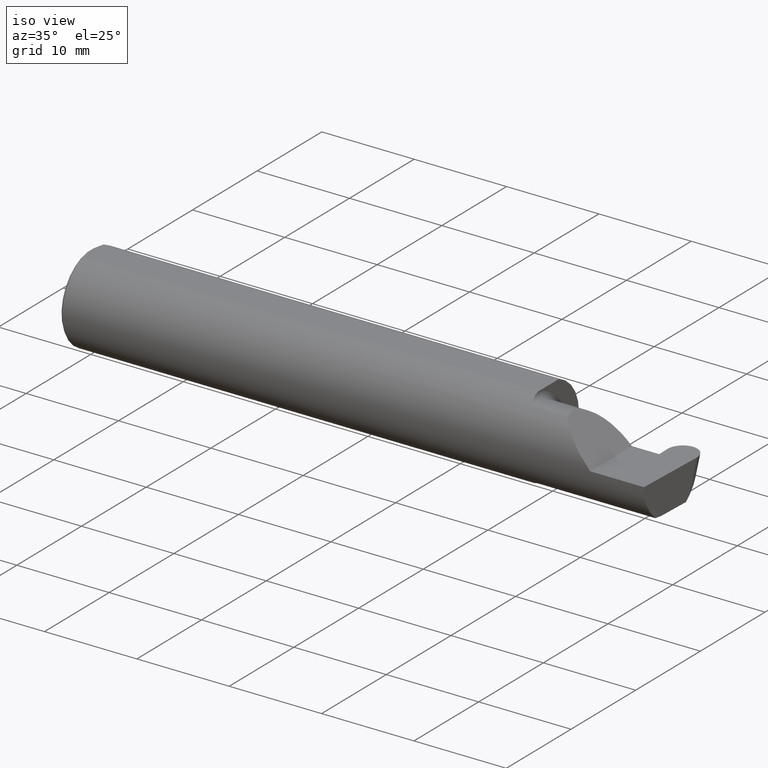
[diagram: clean part render]
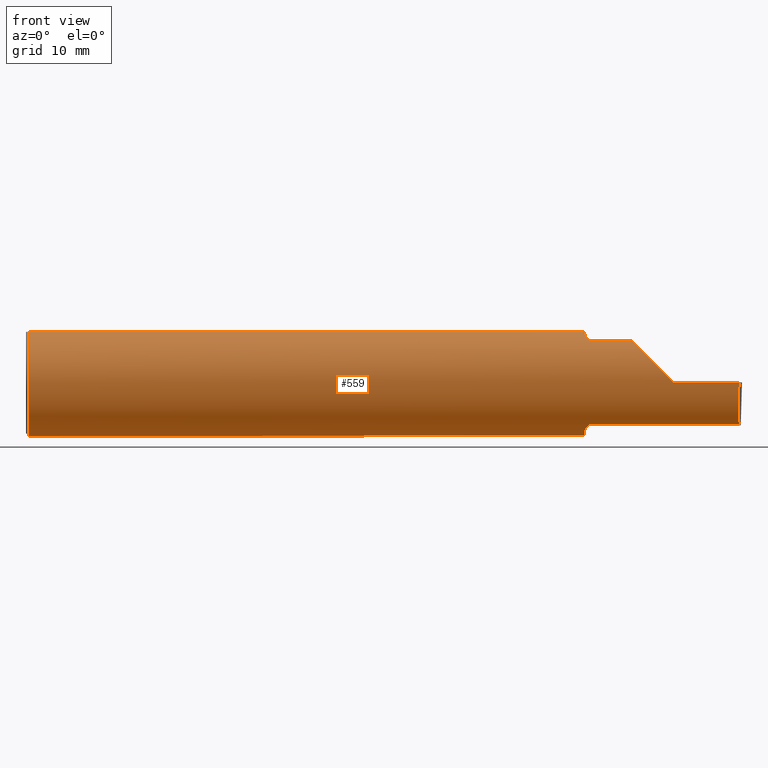
[diagram: tour spotlight — one face highlighted and labeled with its STEP entity id]
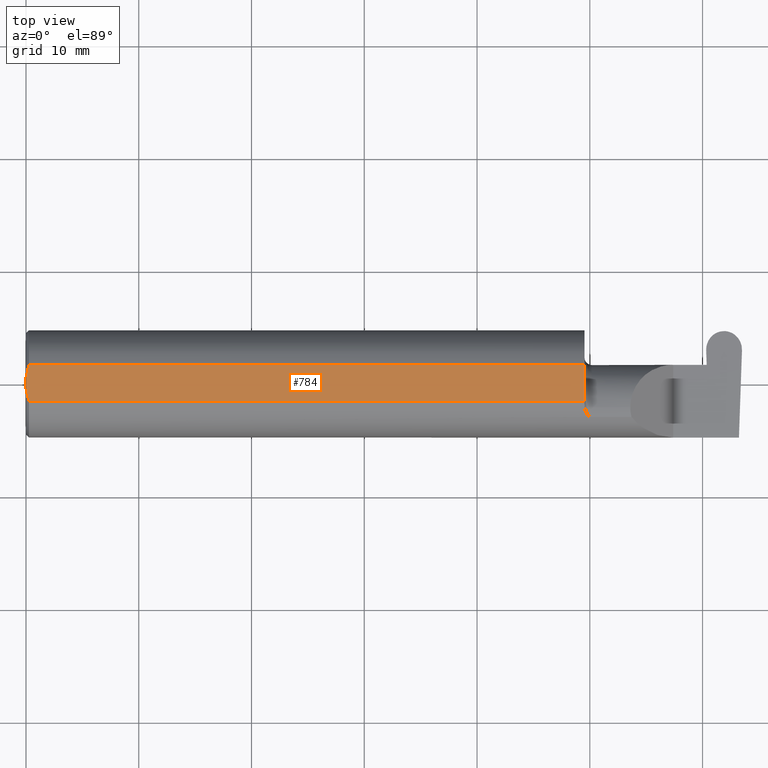
[diagram: tour spotlight — one face highlighted and labeled with its STEP entity id]
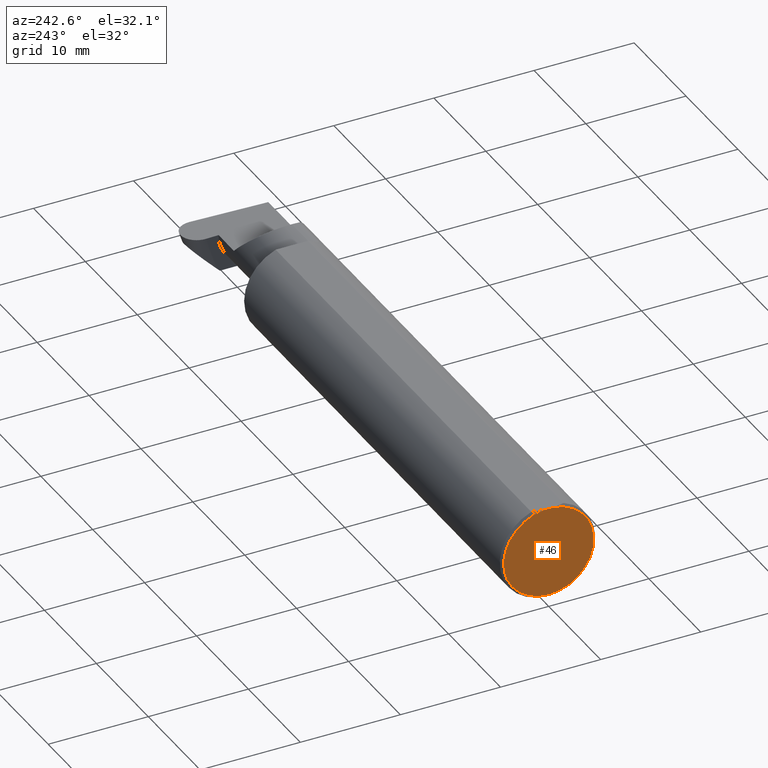
[diagram: tour spotlight — one face highlighted and labeled with its STEP entity id]
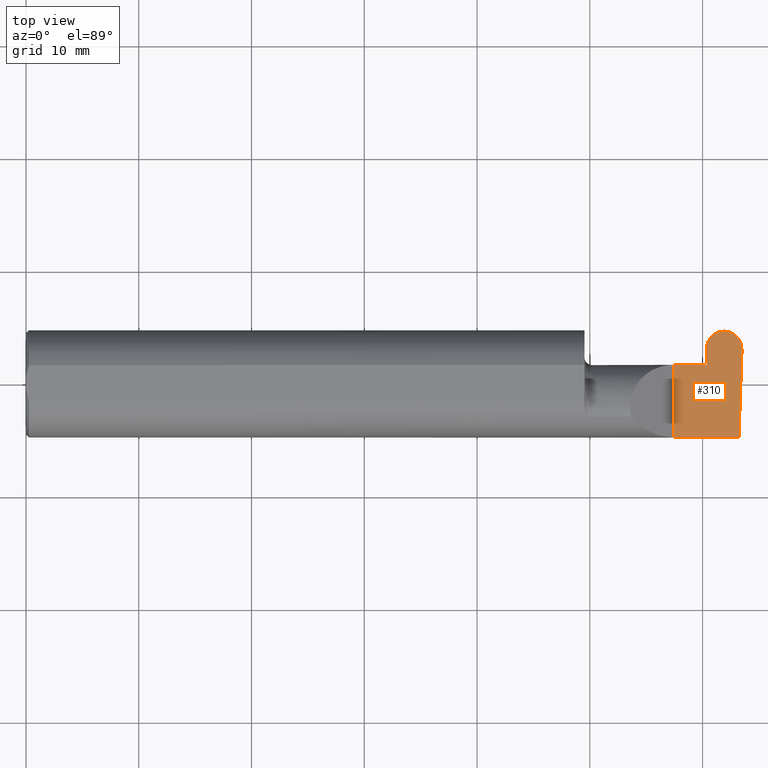
[diagram: tour spotlight — one face highlighted and labeled with its STEP entity id]
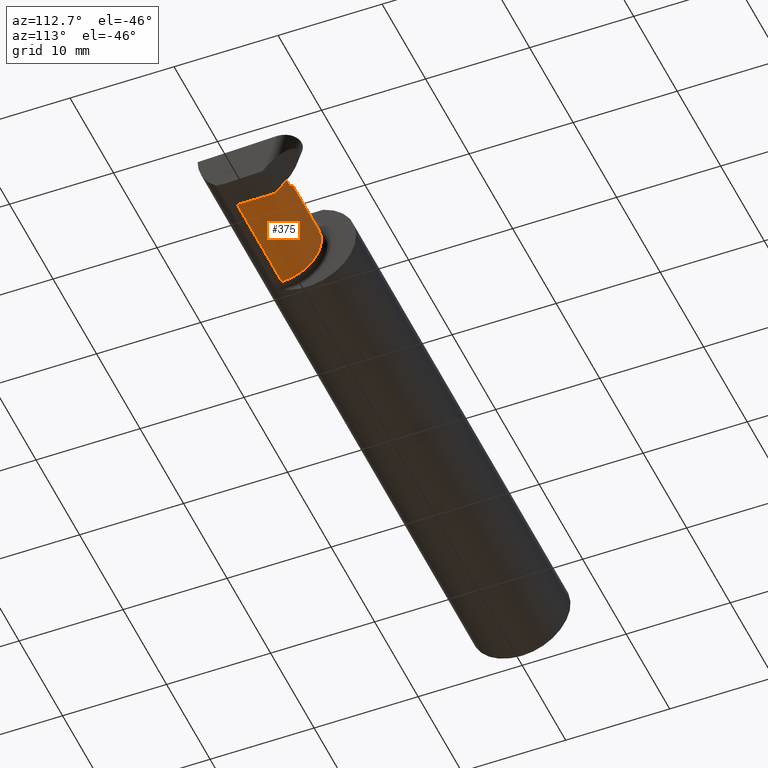
[diagram: tour spotlight — one face highlighted and labeled with its STEP entity id]
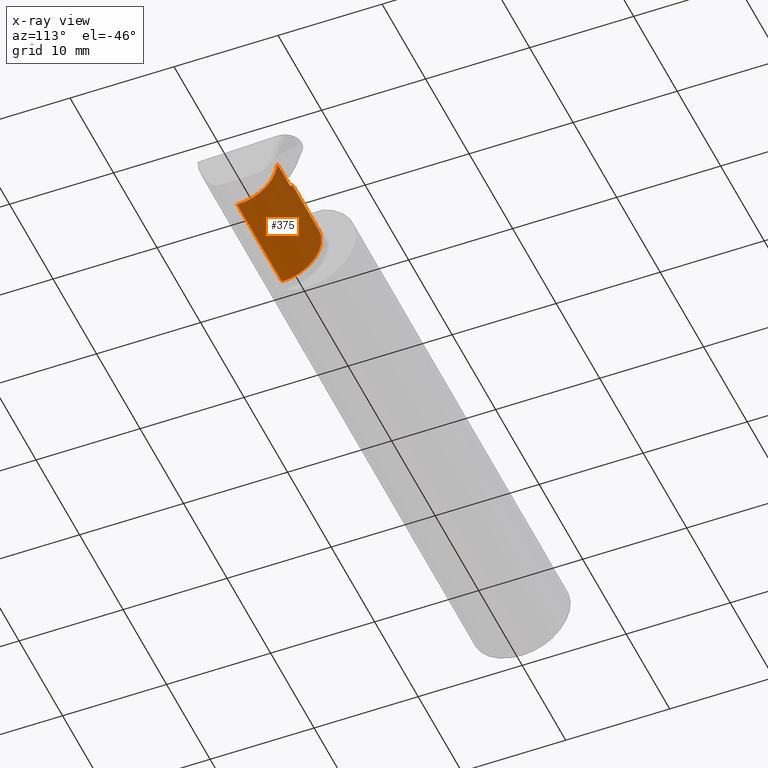
[diagram: x-ray of the same camera — body ghosted, this tour face saturated]
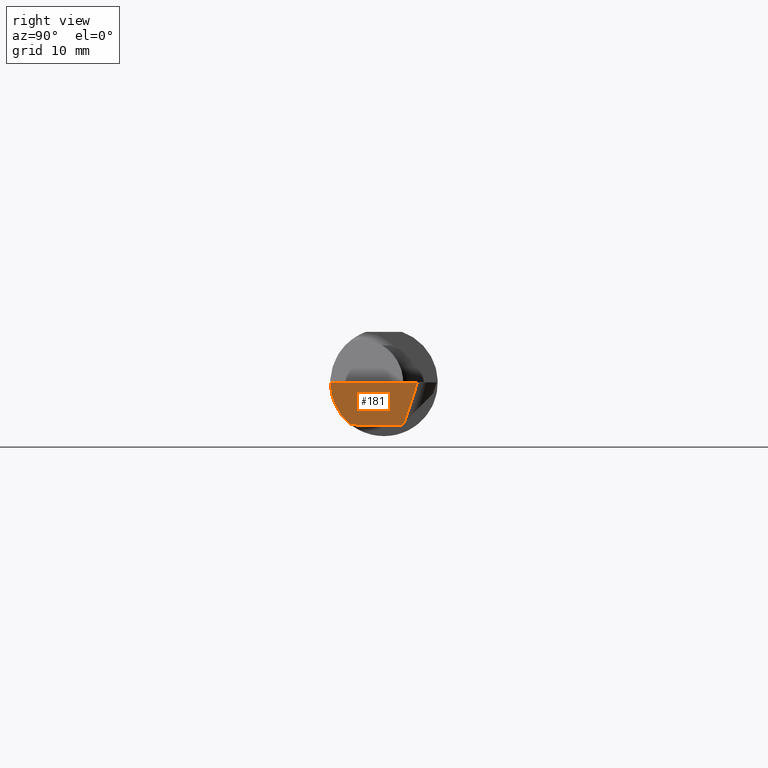
[diagram: tour spotlight — one face highlighted and labeled with its STEP entity id]
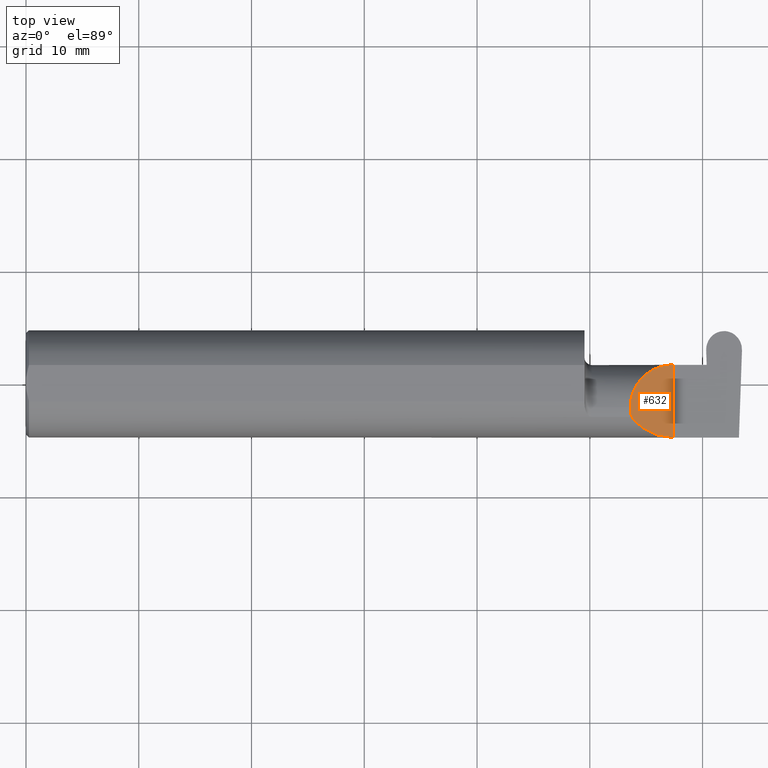
[diagram: tour spotlight — one face highlighted and labeled with its STEP entity id]
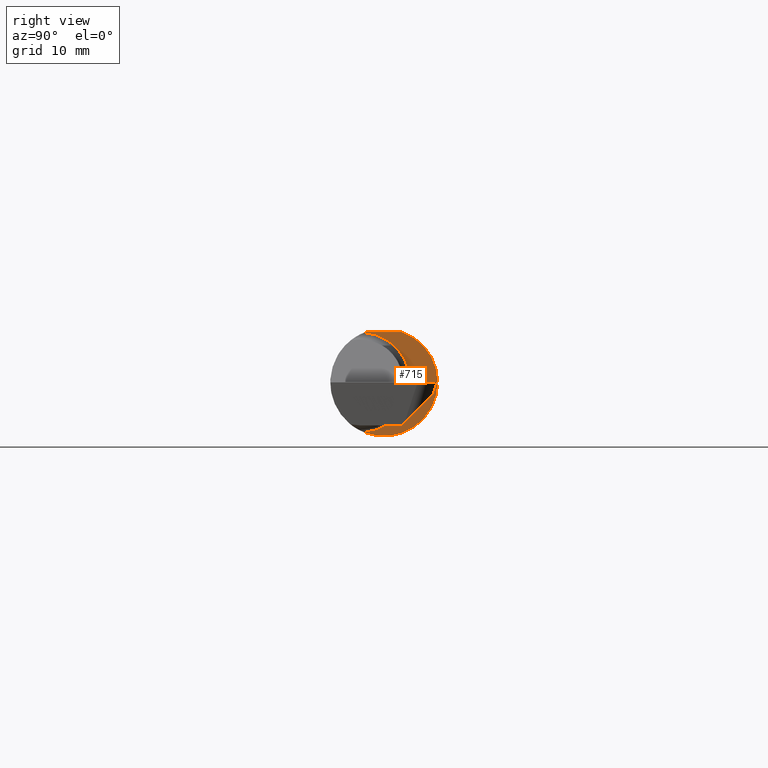
[diagram: tour spotlight — one face highlighted and labeled with its STEP entity id]
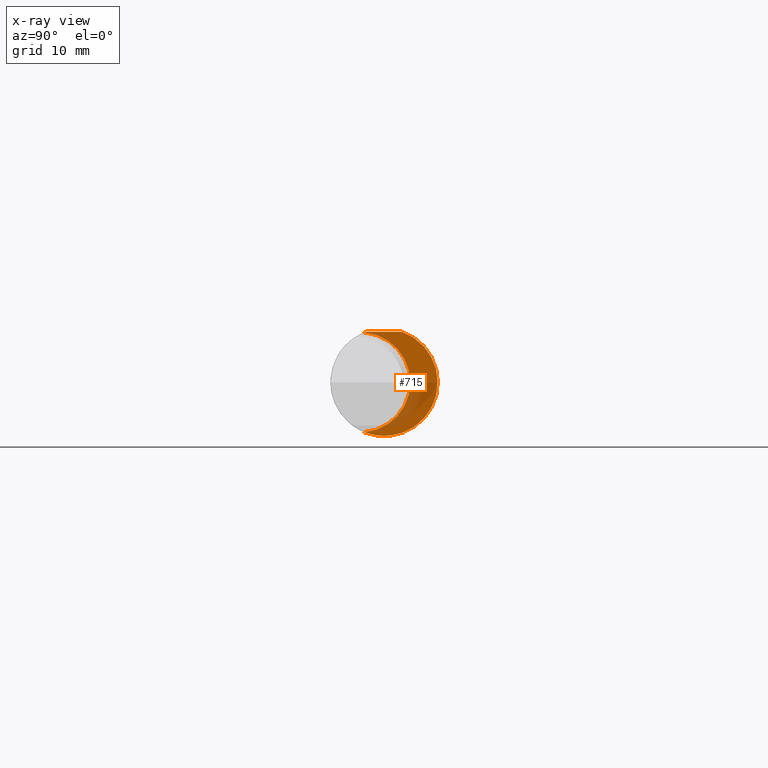
[diagram: x-ray of the same camera — body ghosted, this tour face saturated]
A machine part: a face-by-face anatomy tour. The part has 23 B-rep faces; the first image is the clean iso view, then the 8 largest visible faces are spotlighted one at a time (largest first), each with its STEP entity span.

Face 1 — front view, entity #559. In plain terms, the highlighted cylindrical surface (partial cylindrical patch) has radius 4.7587 mm, axis along (-1, -0, -0).
Definition (entity closure, byte-faithful):
#3 = CARTESIAN_POINT ( 'NONE',  ( 1.970804171164107554, -0.1167508198888948523, -0.1465276362740038363 ) ) ;
#6 = DIRECTION ( 'NONE',  ( 1.000000000000000000, 0.000000000000000000, 0.000000000000000000 ) ) ;
#22 = VERTEX_POINT ( 'NONE', #230 ) ;
#31 = EDGE_CURVE ( 'NONE', #643, #22, #475, .T. ) ;
#32 = CARTESIAN_POINT ( 'NONE',  ( 2.489235021721937002, -0.1873499999999999888, 0.000000000000000000 ) ) ;
#37 = CIRCLE ( 'NONE', #810, 0.1873499999999999888 ) ;
#40 = VECTOR ( 'NONE', #551, 39.37007874015748143 ) ;
#58 = CARTESIAN_POINT ( 'NONE',  ( 1.951062863587535334, -0.08334999999999995191, -0.1677879614275112619 ) ) ;
#63 = EDGE_LOOP ( 'NONE', ( #506, #483, #442, #372, #378, #143, #767, #593, #651, #247, #166, #400, #710, #663, #101 ) ) ;
#68 = CARTESIAN_POINT ( 'NONE',  ( 1.951062863587535334, -0.08334999999999995191, -0.1677879614275112619 ) ) ;
#72 = EDGE_CURVE ( 'NONE', #718, #86, #420, .T. ) ;
#86 = VERTEX_POINT ( 'NONE', #201 ) ;
#87 = CARTESIAN_POINT ( 'NONE',  ( 1.949999999999999956, 0.000000000000000000, 0.000000000000000000 ) ) ;
#97 = CARTESIAN_POINT ( 'NONE',  ( 1.952158970028689655, -0.09067355718685700394, 0.1641499263364886718 ) ) ;
#99 = DIRECTION ( 'NONE',  ( 1.000000000000000000, 0.000000000000000000, 0.000000000000000000 ) ) ;
#100 = CARTESIAN_POINT ( 'NONE',  ( 1.954075010165368553, -0.09778159395695863731, 0.1599914159748310749 ) ) ;
#101 = ORIENTED_EDGE ( 'NONE', *, *, #72, .F. ) ;
#106 = CIRCLE ( 'NONE', #658, 0.1873499999999999888 ) ;
#118 = CARTESIAN_POINT ( 'NONE',  ( 1.949999999999999956, -0.06851976604679065053, -0.1743704796142198643 ) ) ;
#123 = CARTESIAN_POINT ( 'NONE',  ( 1.974999999999999867, -0.1172600179964006228, 0.1461167706989303650 ) ) ;
#127 = CARTESIAN_POINT ( 'NONE',  ( 1.961340974786206282, -0.1102890168945985933, -0.1514792188789464422 ) ) ;
#131 = CARTESIAN_POINT ( 'NONE',  ( 2.150065971957464850, -0.1623470442677540371, 0.1099340280425340488 ) ) ;
#135 = CYLINDRICAL_SURFACE ( 'NONE', #262, 0.1873499999999999888 ) ;
#136 = CARTESIAN_POINT ( 'NONE',  ( 1.959228130464466089, -0.1072797540790366433, -0.1536407449207395914 ) ) ;
#139 = CARTESIAN_POINT ( 'NONE',  ( 1.949999999999999956, -0.06851976604679065053, 0.1743704796142198643 ) ) ;
#141 = DIRECTION ( 'NONE',  ( 0.000000000000000000, 0.000000000000000000, -1.000000000000000000 ) ) ;
#143 = ORIENTED_EDGE ( 'NONE', *, *, #449, .F. ) ;
#152 = DIRECTION ( 'NONE',  ( 0.000000000000000000, 0.000000000000000000, -1.000000000000000000 ) ) ;
#154 = CARTESIAN_POINT ( 'NONE',  ( 1.974999999999999867, -0.1172600179964006090, -0.1461167706989303927 ) ) ;
#166 = ORIENTED_EDGE ( 'NONE', *, *, #207, .T. ) ;
#177 = CIRCLE ( 'NONE', #481, 0.1873499999999999888 ) ;
#182 = CARTESIAN_POINT ( 'NONE',  ( 1.949999999999999956, -0.06325108694718283020, 0.1763499999999999235 ) ) ;
#187 = CARTESIAN_POINT ( 'NONE',  ( 1.952380638915945488, -0.09060738690120608008, -0.1640321561807271122 ) ) ;
#188 = VERTEX_POINT ( 'NONE', #139 ) ;
#190 = FACE_OUTER_BOUND ( 'NONE', #63, .T. ) ;
#195 = CARTESIAN_POINT ( 'NONE',  ( 0.000000000000000000, 0.000000000000000000, 0.000000000000000000 ) ) ;
#201 = CARTESIAN_POINT ( 'NONE',  ( 1.951062863587535334, -0.08334999999999995191, -0.1677879614275112619 ) ) ;
#207 = EDGE_CURVE ( 'NONE', #222, #702, #177, .T. ) ;
#210 = DIRECTION ( 'NONE',  ( 1.000000000000000000, 0.000000000000000000, 0.000000000000000000 ) ) ;
#222 = VERTEX_POINT ( 'NONE', #531 ) ;
#224 = CARTESIAN_POINT ( 'NONE',  ( 1.966924463282974322, -0.1152182125075826291, 0.1477647100440766248 ) ) ;
#230 = CARTESIAN_POINT ( 'NONE',  ( 2.113883229301068312, -0.1172600179964003175, 0.1461167706989304760 ) ) ;
#231 = B_SPLINE_CURVE_WITH_KNOTS ( 'NONE', 3,
 ( #736, #97, #100, #347, #600, #224, #628, #123 ),
 .UNSPECIFIED., .F., .F.,
 ( 4, 2, 2, 4 ),
 ( 0.0004561457252213479583, 0.001084815134961798072, 0.001399149839832026978, 0.001713484544702255884 ),
 .UNSPECIFIED. ) ;
#235 = CARTESIAN_POINT ( 'NONE',  ( 2.488188068920404561, -0.1623470442677541203, -0.1099340280425338823 ) ) ;
#244 = CARTESIAN_POINT ( 'NONE',  ( 2.174861995000000103, -0.1172600179964006090, 0.1461167706989303927 ) ) ;
#247 = ORIENTED_EDGE ( 'NONE', *, *, #401, .T. ) ;
#251 = DIRECTION ( 'NONE',  ( -1.000000000000000000, -0.000000000000000000, -0.000000000000000000 ) ) ;
#259 = DIRECTION ( 'NONE',  ( 1.000000000000000000, 0.000000000000000000, 0.000000000000000000 ) ) ;
#262 = AXIS2_PLACEMENT_3D ( 'NONE', #195, #560, #679 ) ;
#271 = VERTEX_POINT ( 'NONE', #642 ) ;
#275 =( BOUNDED_CURVE ( )  B_SPLINE_CURVE ( 3, ( #795, #235, #785, #492 ),
 .UNSPECIFIED., .F., .T. ) 
 B_SPLINE_CURVE_WITH_KNOTS ( ( 4, 4 ),
 ( 5.852427379562172405, 6.746954780470620250 ),
 .UNSPECIFIED. ) 
 CURVE ( )  GEOMETRIC_REPRESENTATION_ITEM ( )  RATIONAL_B_SPLINE_CURVE ( ( 1.000000000000000000, 0.9344226172588802060, 0.9344226172588802060, 1.000000000000000000 ) ) 
 REPRESENTATION_ITEM ( '' )  );
#276 = CARTESIAN_POINT ( 'NONE',  ( 1.949999999999999956, -0.06851976604679065053, 0.1743704796142198643 ) ) ;
#280 = B_SPLINE_CURVE_WITH_KNOTS ( 'NONE', 3,
 ( #58, #450, #691, #118 ),
 .UNSPECIFIED., .F., .F.,
 ( 4, 4 ),
 ( 0.001278539404338874426, 0.001694873732696222874 ),
 .UNSPECIFIED. ) ;
#294 = CARTESIAN_POINT ( 'NONE',  ( 0.000000000000000000, -0.06325108694718235836, 0.1763499999999999235 ) ) ;
#308 = CARTESIAN_POINT ( 'NONE',  ( 1.974999999999999867, -0.1172600179964006090, -0.1461167706989303927 ) ) ;
#313 = VECTOR ( 'NONE', #6, 39.37007874015748143 ) ;
#314 = VERTEX_POINT ( 'NONE', #616 ) ;
#331 = CARTESIAN_POINT ( 'NONE',  ( 1.949999999999999956, -0.06851976604679065053, -0.1743704796142198643 ) ) ;
#347 = CARTESIAN_POINT ( 'NONE',  ( 1.959249444250374061, -0.1073163636891284745, 0.1536158790136665508 ) ) ;
#355 = AXIS2_PLACEMENT_3D ( 'NONE', #792, #363, #673 ) ;
#358 = LINE ( 'NONE', #294, #464 ) ;
#363 = DIRECTION ( 'NONE',  ( 1.000000000000000000, 0.000000000000000000, 0.000000000000000000 ) ) ;
#369 = CARTESIAN_POINT ( 'NONE',  ( 2.113883229301068312, -0.1172600179964003175, 0.1461167706989304760 ) ) ;
#371 = CARTESIAN_POINT ( 'NONE',  ( 1.951612951569643428, -0.08702537370779860060, -0.1659621904011592264 ) ) ;
#372 = ORIENTED_EDGE ( 'NONE', *, *, #31, .T. ) ;
#377 = CARTESIAN_POINT ( 'NONE',  ( 1.955806801261506855, -0.1009700360460131230, -0.1578590382459147679 ) ) ;
#378 = ORIENTED_EDGE ( 'NONE', *, *, #515, .F. ) ;
#386 = EDGE_CURVE ( 'NONE', #759, #643, #419, .T. ) ;
#387 = CARTESIAN_POINT ( 'NONE',  ( 1.954475235432781677, -0.09757364237049399869, -0.1599863467203318512 ) ) ;
#400 = ORIENTED_EDGE ( 'NONE', *, *, #583, .F. ) ;
#401 = EDGE_CURVE ( 'NONE', #544, #222, #711, .T. ) ;
#411 = LINE ( 'NONE', #662, #40 ) ;
#417 = EDGE_CURVE ( 'NONE', #314, #759, #275, .T. ) ;
#419 = LINE ( 'NONE', #732, #425 ) ;
#420 = B_SPLINE_CURVE_WITH_KNOTS ( 'NONE', 3,
 ( #308, #758, #3, #563, #636, #127, #136, #377, #387, #187, #371, #68 ),
 .UNSPECIFIED., .F., .F.,
 ( 4, 2, 2, 2, 2, 4 ),
 ( 1.967976973726874814E-07, 0.0001599896235275606951, 0.0003197824493577486652, 0.0006393681010181240633, 0.0009589537526784994072, 0.001278539404338874426 ),
 .UNSPECIFIED. ) ;
#425 = VECTOR ( 'NONE', #669, 39.37007874015748143 ) ;
#438 = EDGE_CURVE ( 'NONE', #314, #718, #411, .T. ) ;
#440 = CARTESIAN_POINT ( 'NONE',  ( 0.000000000000000000, 0.06325108694718235836, 0.1763499999999999235 ) ) ;
#442 = ORIENTED_EDGE ( 'NONE', *, *, #386, .T. ) ;
#449 = EDGE_CURVE ( 'NONE', #271, #714, #231, .T. ) ;
#450 = CARTESIAN_POINT ( 'NONE',  ( 1.950346246588685162, -0.07856197451716402658, -0.1701664510438046507 ) ) ;
#455 = EDGE_CURVE ( 'NONE', #86, #731, #280, .T. ) ;
#458 = CARTESIAN_POINT ( 'NONE',  ( 1.974999999999999867, -0.1172600179964006228, 0.1461167706989303650 ) ) ;
#464 = VECTOR ( 'NONE', #99, 39.37007874015748143 ) ;
#475 =( BOUNDED_CURVE ( )  B_SPLINE_CURVE ( 3, ( #786, #503, #131, #369 ),
 .UNSPECIFIED., .F., .T. ) 
 B_SPLINE_CURVE_WITH_KNOTS ( ( 4, 4 ),
 ( 4.712388980384688786, 5.606916381293139295 ),
 .UNSPECIFIED. ) 
 CURVE ( )  GEOMETRIC_REPRESENTATION_ITEM ( )  RATIONAL_B_SPLINE_CURVE ( ( 1.000000000000000000, 0.9344226172588797619, 0.9344226172588797619, 1.000000000000000000 ) ) 
 REPRESENTATION_ITEM ( '' )  );
#481 = AXIS2_PLACEMENT_3D ( 'NONE', #527, #523, #152 ) ;
#483 = ORIENTED_EDGE ( 'NONE', *, *, #417, .T. ) ;
#492 = CARTESIAN_POINT ( 'NONE',  ( 2.489235021721937002, -0.1873499999999999888, 0.000000000000000000 ) ) ;
#500 = VERTEX_POINT ( 'NONE', #182 ) ;
#503 = CARTESIAN_POINT ( 'NONE',  ( 2.202189699843948301, -0.1873500000000000443, 0.05781030015605120170 ) ) ;
#506 = ORIENTED_EDGE ( 'NONE', *, *, #438, .F. ) ;
#515 = EDGE_CURVE ( 'NONE', #714, #22, #744, .T. ) ;
#521 = CARTESIAN_POINT ( 'NONE',  ( 1.949999999999999512, -0.07360907839729496915, 0.1723706084642000480 ) ) ;
#523 = DIRECTION ( 'NONE',  ( 1.000000000000000000, 0.000000000000000000, 0.000000000000000000 ) ) ;
#525 = CARTESIAN_POINT ( 'NONE',  ( 1.949999999999999956, 0.000000000000000000, 0.000000000000000000 ) ) ;
#527 = CARTESIAN_POINT ( 'NONE',  ( 0.009999999999999346217, 0.000000000000000000, 0.000000000000000000 ) ) ;
#529 = CARTESIAN_POINT ( 'NONE',  ( 2.260000000000000231, -0.1873499999999999888, 2.939152317953647352E-17 ) ) ;
#530 = B_SPLINE_CURVE_WITH_KNOTS ( 'NONE', 3,
 ( #276, #521, #534, #652 ),
 .UNSPECIFIED., .F., .F.,
 ( 4, 4 ),
 ( 4.423516731080748054E-05, 0.0004561457252213479583 ),
 .UNSPECIFIED. ) ;
#531 = CARTESIAN_POINT ( 'NONE',  ( 0.009999999999999346217, 0.000000000000000000, -0.1873499999999999888 ) ) ;
#532 = VECTOR ( 'NONE', #251, 39.37007874015748143 ) ;
#534 = CARTESIAN_POINT ( 'NONE',  ( 1.950344683557281300, -0.07855153123406184712, 0.1701716388274757408 ) ) ;
#544 = VERTEX_POINT ( 'NONE', #567 ) ;
#551 = DIRECTION ( 'NONE',  ( -1.000000000000000000, -0.000000000000000000, -0.000000000000000000 ) ) ;
#559 = ADVANCED_FACE ( 'NONE', ( #190 ), #135, .T. ) ;
#560 = DIRECTION ( 'NONE',  ( -1.000000000000000000, -0.000000000000000000, -0.000000000000000000 ) ) ;
#563 = CARTESIAN_POINT ( 'NONE',  ( 1.967163414264744281, -0.1151183835841405462, -0.1478135984872521735 ) ) ;
#567 = CARTESIAN_POINT ( 'NONE',  ( 0.009999999999999346217, -0.06325108694718235836, 0.1763499999999999235 ) ) ;
#583 = EDGE_CURVE ( 'NONE', #800, #702, #813, .T. ) ;
#593 = ORIENTED_EDGE ( 'NONE', *, *, #681, .F. ) ;
#599 = CARTESIAN_POINT ( 'NONE',  ( 1.949999999999999956, 0.06325108694718235836, 0.1763499999999999235 ) ) ;
#600 = CARTESIAN_POINT ( 'NONE',  ( 1.961319809340846376, -0.1102629523538395107, 0.1514982751257170079 ) ) ;
#616 = CARTESIAN_POINT ( 'NONE',  ( 2.489130585478359858, -0.1172600179964006090, -0.1461167706989303927 ) ) ;
#628 = CARTESIAN_POINT ( 'NONE',  ( 1.970724556588811627, -0.1172600179964060213, 0.1461167706989259796 ) ) ;
#636 = CARTESIAN_POINT ( 'NONE',  ( 1.965551048069661855, -0.1140002044565610190, -0.1486821290834930975 ) ) ;
#641 = CARTESIAN_POINT ( 'NONE',  ( 0.009999999999999346217, 0.06325108694718235836, 0.1763499999999999235 ) ) ;
#642 = CARTESIAN_POINT ( 'NONE',  ( 1.951062863587533558, -0.08334999999998819742, 0.1677879614275170628 ) ) ;
#643 = VERTEX_POINT ( 'NONE', #529 ) ;
#651 = ORIENTED_EDGE ( 'NONE', *, *, #789, .F. ) ;
#652 = CARTESIAN_POINT ( 'NONE',  ( 1.951062863587533558, -0.08334999999998819742, 0.1677879614275170628 ) ) ;
#658 = AXIS2_PLACEMENT_3D ( 'NONE', #87, #210, #761 ) ;
#662 = CARTESIAN_POINT ( 'NONE',  ( 2.174861995000000103, -0.1172600179964006090, -0.1461167706989303927 ) ) ;
#663 = ORIENTED_EDGE ( 'NONE', *, *, #455, .F. ) ;
#667 = EDGE_CURVE ( 'NONE', #188, #271, #530, .T. ) ;
#669 = DIRECTION ( 'NONE',  ( -1.000000000000000000, -0.000000000000000000, -0.000000000000000000 ) ) ;
#673 = DIRECTION ( 'NONE',  ( 0.000000000000000000, 0.000000000000000000, -1.000000000000000000 ) ) ;
#675 = EDGE_CURVE ( 'NONE', #731, #800, #37, .T. ) ;
#679 = DIRECTION ( 'NONE',  ( 0.000000000000000000, 0.000000000000000000, 1.000000000000000000 ) ) ;
#681 = EDGE_CURVE ( 'NONE', #500, #188, #106, .T. ) ;
#691 = CARTESIAN_POINT ( 'NONE',  ( 1.949999999999999956, -0.07359296612170564134, -0.1723769398647691242 ) ) ;
#702 = VERTEX_POINT ( 'NONE', #641 ) ;
#710 = ORIENTED_EDGE ( 'NONE', *, *, #675, .F. ) ;
#711 = CIRCLE ( 'NONE', #355, 0.1873499999999999888 ) ;
#714 = VERTEX_POINT ( 'NONE', #458 ) ;
#718 = VERTEX_POINT ( 'NONE', #154 ) ;
#731 = VERTEX_POINT ( 'NONE', #331 ) ;
#732 = CARTESIAN_POINT ( 'NONE',  ( 3.749399456654646757E-32, -0.1873499999999999610, 3.061616997868383634E-16 ) ) ;
#736 = CARTESIAN_POINT ( 'NONE',  ( 1.951062863587533558, -0.08334999999998819742, 0.1677879614275170628 ) ) ;
#744 = LINE ( 'NONE', #244, #313 ) ;
#758 = CARTESIAN_POINT ( 'NONE',  ( 1.972868998470238555, -0.1172600179964005396, -0.1461167706989304482 ) ) ;
#759 = VERTEX_POINT ( 'NONE', #32 ) ;
#761 = DIRECTION ( 'NONE',  ( 0.000000000000000000, 0.000000000000000000, -1.000000000000000000 ) ) ;
#767 = ORIENTED_EDGE ( 'NONE', *, *, #667, .F. ) ;
#785 = CARTESIAN_POINT ( 'NONE',  ( 2.488225324098681579, -0.1873500000000000443, -0.05781030015605120864 ) ) ;
#786 = CARTESIAN_POINT ( 'NONE',  ( 2.260000000000000231, -0.1873499999999999888, 2.939152317953647352E-17 ) ) ;
#789 = EDGE_CURVE ( 'NONE', #544, #500, #358, .T. ) ;
#792 = CARTESIAN_POINT ( 'NONE',  ( 0.009999999999999346217, 0.000000000000000000, 0.000000000000000000 ) ) ;
#795 = CARTESIAN_POINT ( 'NONE',  ( 2.489130585478359858, -0.1172600179964006090, -0.1461167706989303927 ) ) ;
#800 = VERTEX_POINT ( 'NONE', #599 ) ;
#810 = AXIS2_PLACEMENT_3D ( 'NONE', #525, #259, #141 ) ;
#813 = LINE ( 'NONE', #440, #532 ) ;

Face 2 — top view, entity #784. In plain terms, the highlighted planar face has unit normal (0, 0, 1).
Definition (entity closure, byte-faithful):
#7 = CARTESIAN_POINT ( 'NONE',  ( 0.005151108632379595466, -0.04888864921576189376, 0.1763499999999999235 ) ) ;
#21 = CARTESIAN_POINT ( 'NONE',  ( 0.005155213631852355663, 0.04890080824240217866, 0.1763499999999999235 ) ) ;
#41 = CARTESIAN_POINT ( 'NONE',  ( 2.876828993045917215, 0.1873499999999998500, 0.1763499999999999235 ) ) ;
#44 = FACE_OUTER_BOUND ( 'NONE', #693, .T. ) ;
#93 = EDGE_CURVE ( 'NONE', #544, #226, #520, .T. ) ;
#99 = DIRECTION ( 'NONE',  ( 1.000000000000000000, 0.000000000000000000, 0.000000000000000000 ) ) ;
#113 = VERTEX_POINT ( 'NONE', #260 ) ;
#124 = CARTESIAN_POINT ( 'NONE',  ( 0.001595548104417217512, -0.03385300050298979679, 0.1763499999999999235 ) ) ;
#125 = ORIENTED_EDGE ( 'NONE', *, *, #253, .F. ) ;
#146 = LINE ( 'NONE', #335, #501 ) ;
#149 = CARTESIAN_POINT ( 'NONE',  ( 0.000000000000000000, 0.1873499999999998500, 0.1763499999999999235 ) ) ;
#182 = CARTESIAN_POINT ( 'NONE',  ( 1.949999999999999956, -0.06325108694718283020, 0.1763499999999999235 ) ) ;
#204 = DIRECTION ( 'NONE',  ( 0.000000000000000000, 1.000000000000000000, 0.000000000000000000 ) ) ;
#226 = VERTEX_POINT ( 'NONE', #653 ) ;
#240 = ORIENTED_EDGE ( 'NONE', *, *, #690, .T. ) ;
#251 = DIRECTION ( 'NONE',  ( -1.000000000000000000, -0.000000000000000000, -0.000000000000000000 ) ) ;
#253 = EDGE_CURVE ( 'NONE', #113, #702, #804, .T. ) ;
#260 = CARTESIAN_POINT ( 'NONE',  ( 0.000000000000000000, 0.01880691362239451242, 0.1763499999999999235 ) ) ;
#273 = CARTESIAN_POINT ( 'NONE',  ( 0.009999999999999346217, 0.06325108694718235836, 0.1763499999999999235 ) ) ;
#294 = CARTESIAN_POINT ( 'NONE',  ( 0.000000000000000000, -0.06325108694718235836, 0.1763499999999999235 ) ) ;
#303 = EDGE_CURVE ( 'NONE', #226, #113, #708, .T. ) ;
#319 = ORIENTED_EDGE ( 'NONE', *, *, #789, .T. ) ;
#335 = CARTESIAN_POINT ( 'NONE',  ( 1.949999999999999956, 0.1873499999999998500, 0.1763499999999999235 ) ) ;
#358 = LINE ( 'NONE', #294, #464 ) ;
#399 = DIRECTION ( 'NONE',  ( -0.000000000000000000, 1.000000000000000000, -0.000000000000000000 ) ) ;
#440 = CARTESIAN_POINT ( 'NONE',  ( 0.000000000000000000, 0.06325108694718235836, 0.1763499999999999235 ) ) ;
#464 = VECTOR ( 'NONE', #99, 39.37007874015748143 ) ;
#500 = VERTEX_POINT ( 'NONE', #182 ) ;
#501 = VECTOR ( 'NONE', #204, 39.37007874015748143 ) ;
#520 = B_SPLINE_CURVE_WITH_KNOTS ( 'NONE', 3,
 ( #683, #7, #124, #808 ),
 .UNSPECIFIED., .F., .F.,
 ( 4, 4 ),
 ( 0.009771445421851449736, 0.01092787937989102981 ),
 .UNSPECIFIED. ) ;
#532 = VECTOR ( 'NONE', #251, 39.37007874015748143 ) ;
#544 = VERTEX_POINT ( 'NONE', #567 ) ;
#567 = CARTESIAN_POINT ( 'NONE',  ( 0.009999999999999346217, -0.06325108694718235836, 0.1763499999999999235 ) ) ;
#581 = ORIENTED_EDGE ( 'NONE', *, *, #583, .T. ) ;
#583 = EDGE_CURVE ( 'NONE', #800, #702, #813, .T. ) ;
#599 = CARTESIAN_POINT ( 'NONE',  ( 1.949999999999999956, 0.06325108694718235836, 0.1763499999999999235 ) ) ;
#641 = CARTESIAN_POINT ( 'NONE',  ( 0.009999999999999346217, 0.06325108694718235836, 0.1763499999999999235 ) ) ;
#653 = CARTESIAN_POINT ( 'NONE',  ( 0.000000000000000000, -0.01880691362239451242, 0.1763499999999999235 ) ) ;
#656 = CARTESIAN_POINT ( 'NONE',  ( 0.001616639753276218755, 0.03405189565400963680, 0.1763499999999999235 ) ) ;
#664 = DIRECTION ( 'NONE',  ( 0.000000000000000000, 0.000000000000000000, 1.000000000000000000 ) ) ;
#683 = CARTESIAN_POINT ( 'NONE',  ( 0.009999999999999346217, -0.06325108694718235836, 0.1763499999999999235 ) ) ;
#690 = EDGE_CURVE ( 'NONE', #500, #800, #146, .T. ) ;
#693 = EDGE_LOOP ( 'NONE', ( #319, #240, #581, #125, #796, #816 ) ) ;
#702 = VERTEX_POINT ( 'NONE', #641 ) ;
#707 = AXIS2_PLACEMENT_3D ( 'NONE', #41, #664, #794 ) ;
#708 = LINE ( 'NONE', #149, #762 ) ;
#729 = PLANE ( 'NONE',  #707 ) ;
#762 = VECTOR ( 'NONE', #399, 39.37007874015748143 ) ;
#773 = CARTESIAN_POINT ( 'NONE',  ( 0.000000000000000000, 0.01880691362239451242, 0.1763499999999999235 ) ) ;
#784 = ADVANCED_FACE ( 'NONE', ( #44 ), #729, .T. ) ;
#789 = EDGE_CURVE ( 'NONE', #544, #500, #358, .T. ) ;
#794 = DIRECTION ( 'NONE',  ( 1.000000000000000000, 0.000000000000000000, -0.000000000000000000 ) ) ;
#796 = ORIENTED_EDGE ( 'NONE', *, *, #303, .F. ) ;
#800 = VERTEX_POINT ( 'NONE', #599 ) ;
#804 = B_SPLINE_CURVE_WITH_KNOTS ( 'NONE', 3,
 ( #773, #656, #21, #273 ),
 .UNSPECIFIED., .F., .F.,
 ( 4, 4 ),
 ( 0.01188664626022267051, 0.01304646959483758001 ),
 .UNSPECIFIED. ) ;
#808 = CARTESIAN_POINT ( 'NONE',  ( 0.000000000000000000, -0.01880691362239451242, 0.1763499999999999235 ) ) ;
#813 = LINE ( 'NONE', #440, #532 ) ;
#816 = ORIENTED_EDGE ( 'NONE', *, *, #93, .F. ) ;

Face 3 — auxiliary view, entity #46. In plain terms, the highlighted planar face has unit normal (1, 0, 0).
Definition (entity closure, byte-faithful):
#46 = ADVANCED_FACE ( 'NONE', ( #485 ), #70, .F. ) ;
#48 = EDGE_CURVE ( 'NONE', #153, #226, #647, .T. ) ;
#59 = CARTESIAN_POINT ( 'NONE',  ( 0.000000000000000000, 0.000000000000000000, 0.000000000000000000 ) ) ;
#70 = PLANE ( 'NONE',  #660 ) ;
#110 = EDGE_CURVE ( 'NONE', #113, #153, #410, .T. ) ;
#113 = VERTEX_POINT ( 'NONE', #260 ) ;
#149 = CARTESIAN_POINT ( 'NONE',  ( 0.000000000000000000, 0.1873499999999998500, 0.1763499999999999235 ) ) ;
#153 = VERTEX_POINT ( 'NONE', #305 ) ;
#160 = AXIS2_PLACEMENT_3D ( 'NONE', #686, #242, #513 ) ;
#226 = VERTEX_POINT ( 'NONE', #653 ) ;
#242 = DIRECTION ( 'NONE',  ( -1.000000000000000000, -0.000000000000000000, -0.000000000000000000 ) ) ;
#245 = DIRECTION ( 'NONE',  ( 0.000000000000000000, 0.000000000000000000, -1.000000000000000000 ) ) ;
#257 = DIRECTION ( 'NONE',  ( 1.000000000000000000, 0.000000000000000000, 0.000000000000000000 ) ) ;
#260 = CARTESIAN_POINT ( 'NONE',  ( 0.000000000000000000, 0.01880691362239451242, 0.1763499999999999235 ) ) ;
#289 = AXIS2_PLACEMENT_3D ( 'NONE', #763, #451, #245 ) ;
#297 = ORIENTED_EDGE ( 'NONE', *, *, #303, .T. ) ;
#303 = EDGE_CURVE ( 'NONE', #226, #113, #708, .T. ) ;
#305 = CARTESIAN_POINT ( 'NONE',  ( 0.000000000000000000, 0.000000000000000000, -0.1773500000000005072 ) ) ;
#399 = DIRECTION ( 'NONE',  ( -0.000000000000000000, 1.000000000000000000, -0.000000000000000000 ) ) ;
#410 = CIRCLE ( 'NONE', #289, 0.1773500000000005072 ) ;
#451 = DIRECTION ( 'NONE',  ( -1.000000000000000000, -0.000000000000000000, -0.000000000000000000 ) ) ;
#453 = ORIENTED_EDGE ( 'NONE', *, *, #48, .T. ) ;
#485 = FACE_OUTER_BOUND ( 'NONE', #617, .T. ) ;
#513 = DIRECTION ( 'NONE',  ( 0.000000000000000000, 0.000000000000000000, -1.000000000000000000 ) ) ;
#573 = DIRECTION ( 'NONE',  ( 0.000000000000000000, 0.000000000000000000, -1.000000000000000000 ) ) ;
#617 = EDGE_LOOP ( 'NONE', ( #297, #670, #453 ) ) ;
#647 = CIRCLE ( 'NONE', #160, 0.1773500000000005072 ) ;
#653 = CARTESIAN_POINT ( 'NONE',  ( 0.000000000000000000, -0.01880691362239451242, 0.1763499999999999235 ) ) ;
#660 = AXIS2_PLACEMENT_3D ( 'NONE', #59, #257, #573 ) ;
#670 = ORIENTED_EDGE ( 'NONE', *, *, #110, .T. ) ;
#686 = CARTESIAN_POINT ( 'NONE',  ( 0.000000000000000000, 0.000000000000000000, 0.000000000000000000 ) ) ;
#708 = LINE ( 'NONE', #149, #762 ) ;
#762 = VECTOR ( 'NONE', #399, 39.37007874015748143 ) ;
#763 = CARTESIAN_POINT ( 'NONE',  ( 0.000000000000000000, 0.000000000000000000, 0.000000000000000000 ) ) ;

Face 4 — top view, entity #310. In plain terms, the highlighted planar face has unit normal (-0, 0, -1).
Definition (entity closure, byte-faithful):
#4 = VERTEX_POINT ( 'NONE', #790 ) ;
#12 = AXIS2_PLACEMENT_3D ( 'NONE', #285, #164, #239 ) ;
#13 = LINE ( 'NONE', #337, #724 ) ;
#18 = VERTEX_POINT ( 'NONE', #184 ) ;
#19 = CARTESIAN_POINT ( 'NONE',  ( 2.475377307836966079, 0.1846499999999998975, -4.652953611126238856E-18 ) ) ;
#32 = CARTESIAN_POINT ( 'NONE',  ( 2.489235021721937002, -0.1873499999999999888, 0.000000000000000000 ) ) ;
#36 = PLANE ( 'NONE',  #12 ) ;
#54 = DIRECTION ( 'NONE',  ( -0.03489949670249442581, -0.9993908270190959842, 0.000000000000000000 ) ) ;
#78 = CARTESIAN_POINT ( 'NONE',  ( 2.367498442027135663, 0.06665000000000002867, 0.000000000000000000 ) ) ;
#81 = ORIENTED_EDGE ( 'NONE', *, *, #386, .F. ) ;
#85 = FACE_OUTER_BOUND ( 'NONE', #493, .T. ) ;
#90 = LINE ( 'NONE', #454, #518 ) ;
#120 = EDGE_CURVE ( 'NONE', #4, #759, #441, .T. ) ;
#158 = CARTESIAN_POINT ( 'NONE',  ( 2.260000000000000231, -0.2500000000000000555, 2.939152317953647352E-17 ) ) ;
#159 = EDGE_CURVE ( 'NONE', #161, #687, #561, .T. ) ;
#161 = VERTEX_POINT ( 'NONE', #509 ) ;
#164 = DIRECTION ( 'NONE',  ( -1.224646799147353947E-16, 0.000000000000000000, -1.000000000000000000 ) ) ;
#184 = CARTESIAN_POINT ( 'NONE',  ( 2.374857090704703300, 0.1171071390637349746, 0.000000000000000000 ) ) ;
#186 = CARTESIAN_POINT ( 'NONE',  ( 2.373483501636015180, 0.1564415835413277556, 1.582374065488283881E-17 ) ) ;
#198 = EDGE_CURVE ( 'NONE', #626, #570, #13, .T. ) ;
#200 = CARTESIAN_POINT ( 'NONE',  ( 2.399346682163034483, 0.1846500000000001473, 1.265641453006449190E-17 ) ) ;
#205 = ORIENTED_EDGE ( 'NONE', *, *, #634, .F. ) ;
#217 = CARTESIAN_POINT ( 'NONE',  ( 2.437939523532632435, 0.1846500000000000363, 0.000000000000000000 ) ) ;
#219 = ORIENTED_EDGE ( 'NONE', *, *, #159, .F. ) ;
#239 = DIRECTION ( 'NONE',  ( -1.000000000000000000, 0.000000000000000000, 1.224646799147353947E-16 ) ) ;
#252 = DIRECTION ( 'NONE',  ( 1.000000000000000000, -0.000000000000000000, -0.000000000000000000 ) ) ;
#254 = VERTEX_POINT ( 'NONE', #343 ) ;
#265 = CARTESIAN_POINT ( 'NONE',  ( 2.501240488363984493, 0.1564415835413276723, -7.820279735944560344E-18 ) ) ;
#267 = ORIENTED_EDGE ( 'NONE', *, *, #198, .F. ) ;
#285 = CARTESIAN_POINT ( 'NONE',  ( 2.500000000000000000, -0.2500000000000000555, 0.000000000000000000 ) ) ;
#310 = ADVANCED_FACE ( 'NONE', ( #85 ), #36, .F. ) ;
#337 = CARTESIAN_POINT ( 'NONE',  ( 2.376619092827160884, 0.06665000000000002867, 0.000000000000000000 ) ) ;
#339 = ORIENTED_EDGE ( 'NONE', *, *, #120, .F. ) ;
#343 = CARTESIAN_POINT ( 'NONE',  ( 2.260000000000000231, 0.06665000000000002867, 6.735557395310446214E-17 ) ) ;
#360 =( BOUNDED_CURVE ( )  B_SPLINE_CURVE ( 3, ( #402, #265, #19, #217 ),
 .UNSPECIFIED., .F., .F. ) 
 B_SPLINE_CURVE_WITH_KNOTS ( ( 4, 4 ),
 ( 1.627103621474502493, 3.225696776093221807 ),
 .UNSPECIFIED. ) 
 CURVE ( )  GEOMETRIC_REPRESENTATION_ITEM ( )  RATIONAL_B_SPLINE_CURVE ( ( 1.000000000000000000, 0.7981407609938093728, 0.7981407609938093728, 1.000000000000000000 ) ) 
 REPRESENTATION_ITEM ( '' )  );
#386 = EDGE_CURVE ( 'NONE', #759, #643, #419, .T. ) ;
#397 = VECTOR ( 'NONE', #665, 39.37007874015748143 ) ;
#402 = CARTESIAN_POINT ( 'NONE',  ( 2.499866899295296374, 0.1171071390637350995, 0.000000000000000000 ) ) ;
#419 = LINE ( 'NONE', #732, #425 ) ;
#425 = VECTOR ( 'NONE', #669, 39.37007874015748143 ) ;
#428 = EDGE_CURVE ( 'NONE', #643, #254, #555, .T. ) ;
#432 = CARTESIAN_POINT ( 'NONE',  ( 2.436784466467367682, 0.1846500000000000363, 0.000000000000000000 ) ) ;
#435 = CARTESIAN_POINT ( 'NONE',  ( 2.376619092827160884, 0.06665000000000002867, 0.000000000000000000 ) ) ;
#441 = LINE ( 'NONE', #815, #606 ) ;
#454 = CARTESIAN_POINT ( 'NONE',  ( 2.374762147380223620, 0.1198259601510516803, 0.000000000000000000 ) ) ;
#480 = DIRECTION ( 'NONE',  ( 1.000000000000000000, 0.000000000000000000, 0.000000000000000000 ) ) ;
#493 = EDGE_LOOP ( 'NONE', ( #219, #779, #205, #267, #782, #746, #81, #339, #659 ) ) ;
#509 = CARTESIAN_POINT ( 'NONE',  ( 2.436784466467367682, 0.1846500000000000363, 0.000000000000000000 ) ) ;
#516 = DIRECTION ( 'NONE',  ( -0.03489949670249639646, 0.9993908270190959842, -0.000000000000000000 ) ) ;
#518 = VECTOR ( 'NONE', #516, 39.37007874015748143 ) ;
#529 = CARTESIAN_POINT ( 'NONE',  ( 2.260000000000000231, -0.1873499999999999888, 2.939152317953647352E-17 ) ) ;
#549 = EDGE_CURVE ( 'NONE', #161, #18, #753, .T. ) ;
#555 = LINE ( 'NONE', #158, #397 ) ;
#561 = LINE ( 'NONE', #803, #635 ) ;
#570 = VERTEX_POINT ( 'NONE', #435 ) ;
#572 = CARTESIAN_POINT ( 'NONE',  ( 2.374857090704703300, 0.1171071390637349746, 0.000000000000000000 ) ) ;
#602 = LINE ( 'NONE', #780, #734 ) ;
#606 = VECTOR ( 'NONE', #54, 39.37007874015748854 ) ;
#626 = VERTEX_POINT ( 'NONE', #78 ) ;
#634 = EDGE_CURVE ( 'NONE', #570, #18, #90, .T. ) ;
#635 = VECTOR ( 'NONE', #252, 39.37007874015748143 ) ;
#643 = VERTEX_POINT ( 'NONE', #529 ) ;
#649 = EDGE_CURVE ( 'NONE', #4, #687, #360, .T. ) ;
#659 = ORIENTED_EDGE ( 'NONE', *, *, #649, .T. ) ;
#665 = DIRECTION ( 'NONE',  ( -0.000000000000000000, 1.000000000000000000, -0.000000000000000000 ) ) ;
#669 = DIRECTION ( 'NONE',  ( -1.000000000000000000, -0.000000000000000000, -0.000000000000000000 ) ) ;
#687 = VERTEX_POINT ( 'NONE', #699 ) ;
#699 = CARTESIAN_POINT ( 'NONE',  ( 2.437939523532632435, 0.1846500000000000363, 0.000000000000000000 ) ) ;
#713 = DIRECTION ( 'NONE',  ( 1.000000000000000000, -0.000000000000000000, -0.000000000000000000 ) ) ;
#724 = VECTOR ( 'NONE', #713, 39.37007874015748143 ) ;
#732 = CARTESIAN_POINT ( 'NONE',  ( 3.749399456654646757E-32, -0.1873499999999999610, 3.061616997868383634E-16 ) ) ;
#734 = VECTOR ( 'NONE', #480, 39.37007874015748143 ) ;
#746 = ORIENTED_EDGE ( 'NONE', *, *, #428, .F. ) ;
#753 =( BOUNDED_CURVE ( )  B_SPLINE_CURVE ( 3, ( #432, #200, #186, #572 ),
 .UNSPECIFIED., .F., .T. ) 
 B_SPLINE_CURVE_WITH_KNOTS ( ( 4, 4 ),
 ( 3.057488531086357320, 4.656081685705083295 ),
 .UNSPECIFIED. ) 
 CURVE ( )  GEOMETRIC_REPRESENTATION_ITEM ( )  RATIONAL_B_SPLINE_CURVE ( ( 1.000000000000000000, 0.7981407609938078185, 0.7981407609938078185, 1.000000000000000000 ) ) 
 REPRESENTATION_ITEM ( '' )  );
#759 = VERTEX_POINT ( 'NONE', #32 ) ;
#760 = EDGE_CURVE ( 'NONE', #254, #626, #602, .T. ) ;
#779 = ORIENTED_EDGE ( 'NONE', *, *, #549, .T. ) ;
#780 = CARTESIAN_POINT ( 'NONE',  ( 1.949999999999999956, 0.06665000000000002867, 6.735557395310446214E-17 ) ) ;
#782 = ORIENTED_EDGE ( 'NONE', *, *, #760, .F. ) ;
#790 = CARTESIAN_POINT ( 'NONE',  ( 2.499866899295296374, 0.1171071390637350995, 0.000000000000000000 ) ) ;
#803 = CARTESIAN_POINT ( 'NONE',  ( -0.001039370078740541395, 0.1846500000000000363, 0.000000000000000000 ) ) ;
#815 = CARTESIAN_POINT ( 'NONE',  ( 2.499961842619776053, 0.1198259601510516942, 0.000000000000000000 ) ) ;

Face 5 — auxiliary view, entity #375. An x-ray twin of the same camera follows (body ghosted, this face saturated) — the face is partly hidden behind the body. In plain terms, the highlighted cylindrical surface (partial cylindrical patch) has radius 3.81 mm, axis along (-1, -0, -0).
Definition (entity closure, byte-faithful):
#5 = EDGE_CURVE ( 'NONE', #8, #614, #389, .T. ) ;
#8 = VERTEX_POINT ( 'NONE', #556 ) ;
#11 = CARTESIAN_POINT ( 'NONE',  ( 2.367498442027135663, 0.06665000000000002867, 0.000000000000000000 ) ) ;
#26 = ORIENTED_EDGE ( 'NONE', *, *, #269, .F. ) ;
#39 = VECTOR ( 'NONE', #288, 39.37007874015748143 ) ;
#50 = CARTESIAN_POINT ( 'NONE',  ( 2.109999999999998987, -0.08334999999999999354, 0.1500000000000000500 ) ) ;
#51 = CARTESIAN_POINT ( 'NONE',  ( 2.376713715390371462, 0.06655862405286437633, -0.005234924505376314756 ) ) ;
#55 = ORIENTED_EDGE ( 'NONE', *, *, #618, .F. ) ;
#56 = EDGE_CURVE ( 'NONE', #614, #536, #697, .T. ) ;
#71 = ORIENTED_EDGE ( 'NONE', *, *, #365, .F. ) ;
#78 = CARTESIAN_POINT ( 'NONE',  ( 2.367498442027135663, 0.06665000000000002867, 0.000000000000000000 ) ) ;
#94 = CIRCLE ( 'NONE', #302, 0.1500000000000000500 ) ;
#115 = CARTESIAN_POINT ( 'NONE',  ( 2.109999999999998543, 0.004517965644035750600, 0.1500000000000000500 ) ) ;
#116 = CARTESIAN_POINT ( 'NONE',  ( 2.379376865616626535, -0.08334999999999999354, -0.1500000000000000500 ) ) ;
#165 = VERTEX_POINT ( 'NONE', #755 ) ;
#169 = LINE ( 'NONE', #228, #39 ) ;
#176 = EDGE_LOOP ( 'NONE', ( #735, #564, #26, #71, #654, #528, #55, #809 ) ) ;
#179 = FACE_OUTER_BOUND ( 'NONE', #176, .T. ) ;
#189 = VECTOR ( 'NONE', #745, 39.37007874015748143 ) ;
#225 = VECTOR ( 'NONE', #720, 39.37007874015748143 ) ;
#228 = CARTESIAN_POINT ( 'NONE',  ( 1.949999999999999956, -0.08334999999999999354, 0.1500000000000000500 ) ) ;
#249 = AXIS2_PLACEMENT_3D ( 'NONE', #548, #799, #429 ) ;
#254 = VERTEX_POINT ( 'NONE', #343 ) ;
#269 = EDGE_CURVE ( 'NONE', #524, #388, #94, .T. ) ;
#288 = DIRECTION ( 'NONE',  ( -1.000000000000000000, -0.000000000000000000, -0.000000000000000000 ) ) ;
#292 = CARTESIAN_POINT ( 'NONE',  ( 2.172132034355963359, 0.06665000000000001479, 0.08786796564403576149 ) ) ;
#302 = AXIS2_PLACEMENT_3D ( 'NONE', #394, #477, #391 ) ;
#338 = EDGE_CURVE ( 'NONE', #8, #388, #415, .T. ) ;
#343 = CARTESIAN_POINT ( 'NONE',  ( 2.260000000000000231, 0.06665000000000002867, 6.735557395310446214E-17 ) ) ;
#349 = EDGE_CURVE ( 'NONE', #165, #254, #801, .T. ) ;
#365 = EDGE_CURVE ( 'NONE', #165, #524, #169, .T. ) ;
#375 = ADVANCED_FACE ( 'NONE', ( #179 ), #482, .T. ) ;
#388 = VERTEX_POINT ( 'NONE', #726 ) ;
#389 =( BOUNDED_CURVE ( )  B_SPLINE_CURVE ( 3, ( #116, #793, #550, #51 ),
 .UNSPECIFIED., .F., .T. ) 
 B_SPLINE_CURVE_WITH_KNOTS ( ( 4, 4 ),
 ( 3.159045946109736214, 4.694935687864738583 ),
 .UNSPECIFIED. ) 
 CURVE ( )  GEOMETRIC_REPRESENTATION_ITEM ( )  RATIONAL_B_SPLINE_CURVE ( ( 1.000000000000000000, 0.8128932002257691636, 0.8128932002257691636, 1.000000000000000000 ) ) 
 REPRESENTATION_ITEM ( '' )  );
#391 = DIRECTION ( 'NONE',  ( 0.000000000000000000, 0.000000000000000000, 1.000000000000000000 ) ) ;
#394 = CARTESIAN_POINT ( 'NONE',  ( 1.974999999999999867, -0.08334999999999999354, 0.000000000000000000 ) ) ;
#405 = CARTESIAN_POINT ( 'NONE',  ( 2.367437524729044895, 0.06658908270190960765, -0.003489949670250024321 ) ) ;
#415 = LINE ( 'NONE', #546, #225 ) ;
#429 = DIRECTION ( 'NONE',  ( 0.000000000000000000, 0.000000000000000000, 1.000000000000000000 ) ) ;
#477 = DIRECTION ( 'NONE',  ( -1.000000000000000000, -0.000000000000000000, -0.000000000000000000 ) ) ;
#480 = DIRECTION ( 'NONE',  ( 1.000000000000000000, 0.000000000000000000, 0.000000000000000000 ) ) ;
#482 = CYLINDRICAL_SURFACE ( 'NONE', #249, 0.1500000000000000500 ) ;
#495 = CARTESIAN_POINT ( 'NONE',  ( 1.974999999999999867, -0.08334999999999999354, 0.1500000000000000500 ) ) ;
#499 = CARTESIAN_POINT ( 'NONE',  ( 1.949999999999999956, 0.06655862405286441796, -0.005234924505374308548 ) ) ;
#524 = VERTEX_POINT ( 'NONE', #495 ) ;
#528 = ORIENTED_EDGE ( 'NONE', *, *, #760, .T. ) ;
#536 = VERTEX_POINT ( 'NONE', #757 ) ;
#546 = CARTESIAN_POINT ( 'NONE',  ( 1.949999999999999956, -0.08334999999999997966, -0.1500000000000000500 ) ) ;
#548 = CARTESIAN_POINT ( 'NONE',  ( 1.949999999999999956, -0.08334999999999999354, 0.000000000000000000 ) ) ;
#550 = CARTESIAN_POINT ( 'NONE',  ( 2.378257866392183395, 0.06357628547474968028, -0.09063792740365848866 ) ) ;
#556 = CARTESIAN_POINT ( 'NONE',  ( 2.379376865616626535, -0.08334999999999999354, -0.1500000000000000500 ) ) ;
#564 = ORIENTED_EDGE ( 'NONE', *, *, #338, .T. ) ;
#590 = CARTESIAN_POINT ( 'NONE',  ( 2.367467983378090501, 0.06661954135095481122, -0.001744974835125011944 ) ) ;
#595 = CARTESIAN_POINT ( 'NONE',  ( 2.367407066079999733, 0.06655862405286439021, -0.005234924505375040601 ) ) ;
#596 = B_SPLINE_CURVE_WITH_KNOTS ( 'NONE', 3,
 ( #595, #405, #590, #11 ),
 .UNSPECIFIED., .F., .F.,
 ( 4, 4 ),
 ( 0.000000000000000000, 1.000000000000000000 ),
 .UNSPECIFIED. ) ;
#602 = LINE ( 'NONE', #780, #734 ) ;
#614 = VERTEX_POINT ( 'NONE', #768 ) ;
#618 = EDGE_CURVE ( 'NONE', #536, #626, #596, .T. ) ;
#626 = VERTEX_POINT ( 'NONE', #78 ) ;
#654 = ORIENTED_EDGE ( 'NONE', *, *, #349, .T. ) ;
#697 = LINE ( 'NONE', #499, #189 ) ;
#720 = DIRECTION ( 'NONE',  ( -1.000000000000000000, -0.000000000000000000, -0.000000000000000000 ) ) ;
#726 = CARTESIAN_POINT ( 'NONE',  ( 1.974999999999999867, -0.08334999999999997966, -0.1500000000000000500 ) ) ;
#734 = VECTOR ( 'NONE', #480, 39.37007874015748143 ) ;
#735 = ORIENTED_EDGE ( 'NONE', *, *, #5, .F. ) ;
#745 = DIRECTION ( 'NONE',  ( -1.000000000000000000, -0.000000000000000000, -0.000000000000000000 ) ) ;
#755 = CARTESIAN_POINT ( 'NONE',  ( 2.109999999999998987, -0.08334999999999999354, 0.1500000000000000500 ) ) ;
#757 = CARTESIAN_POINT ( 'NONE',  ( 2.367407066079999733, 0.06655862405286439021, -0.005234924505375040601 ) ) ;
#760 = EDGE_CURVE ( 'NONE', #254, #626, #602, .T. ) ;
#768 = CARTESIAN_POINT ( 'NONE',  ( 2.376713715390371462, 0.06655862405286437633, -0.005234924505376314756 ) ) ;
#780 = CARTESIAN_POINT ( 'NONE',  ( 1.949999999999999956, 0.06665000000000002867, 6.735557395310446214E-17 ) ) ;
#788 = CARTESIAN_POINT ( 'NONE',  ( 2.260000000000000231, 0.06665000000000002867, 6.735557395310446214E-17 ) ) ;
#793 = CARTESIAN_POINT ( 'NONE',  ( 2.379349912360630981, 0.002105059811800983477, -0.1500000000000000777 ) ) ;
#799 = DIRECTION ( 'NONE',  ( -1.000000000000000000, -0.000000000000000000, -0.000000000000000000 ) ) ;
#801 =( BOUNDED_CURVE ( )  B_SPLINE_CURVE ( 3, ( #50, #115, #292, #788 ),
 .UNSPECIFIED., .F., .T. ) 
 B_SPLINE_CURVE_WITH_KNOTS ( ( 4, 4 ),
 ( 0.000000000000000000, 1.570796326794896336 ),
 .UNSPECIFIED. ) 
 CURVE ( )  GEOMETRIC_REPRESENTATION_ITEM ( )  RATIONAL_B_SPLINE_CURVE ( ( 1.000000000000000000, 0.8047378541243650485, 0.8047378541243650485, 1.000000000000000000 ) ) 
 REPRESENTATION_ITEM ( '' )  );
#809 = ORIENTED_EDGE ( 'NONE', *, *, #56, .F. ) ;

Face 6 — right view, entity #181. In plain terms, the highlighted planar face has unit normal (-0.9992, 0.0349, 0.0175).
Definition (entity closure, byte-faithful):
#4 = VERTEX_POINT ( 'NONE', #790 ) ;
#32 = CARTESIAN_POINT ( 'NONE',  ( 2.489235021721937002, -0.1873499999999999888, 0.000000000000000000 ) ) ;
#54 = DIRECTION ( 'NONE',  ( -0.03489949670249442581, -0.9993908270190959842, 0.000000000000000000 ) ) ;
#60 = ORIENTED_EDGE ( 'NONE', *, *, #608, .F. ) ;
#66 = DIRECTION ( 'NONE',  ( 0.02739170151060025399, 0.3089010440752013031, 0.9506996579664918068 ) ) ;
#73 = DIRECTION ( 'NONE',  ( -0.03489949670249442581, -0.9993908270190959842, 0.000000000000000000 ) ) ;
#120 = EDGE_CURVE ( 'NONE', #4, #759, #441, .T. ) ;
#126 = CARTESIAN_POINT ( 'NONE',  ( 2.497701985005003511, 0.1068529269586859370, -0.1034501245844643841 ) ) ;
#144 = EDGE_CURVE ( 'NONE', #314, #212, #557, .T. ) ;
#181 = ADVANCED_FACE ( 'NONE', ( #585 ), #469, .F. ) ;
#208 = CARTESIAN_POINT ( 'NONE',  ( 2.499961842619776053, 0.1198259601510516942, 0.000000000000000000 ) ) ;
#212 = VERTEX_POINT ( 'NONE', #591 ) ;
#235 = CARTESIAN_POINT ( 'NONE',  ( 2.488188068920404561, -0.1623470442677541203, -0.1099340280425338823 ) ) ;
#256 = LINE ( 'NONE', #341, #326 ) ;
#264 = AXIS2_PLACEMENT_3D ( 'NONE', #208, #717, #270 ) ;
#270 = DIRECTION ( 'NONE',  ( -0.03489949670249442581, -0.9993908270190959842, 0.000000000000000000 ) ) ;
#275 =( BOUNDED_CURVE ( )  B_SPLINE_CURVE ( 3, ( #795, #235, #785, #492 ),
 .UNSPECIFIED., .F., .T. ) 
 B_SPLINE_CURVE_WITH_KNOTS ( ( 4, 4 ),
 ( 5.852427379562172405, 6.746954780470620250 ),
 .UNSPECIFIED. ) 
 CURVE ( )  GEOMETRIC_REPRESENTATION_ITEM ( )  RATIONAL_B_SPLINE_CURVE ( ( 1.000000000000000000, 0.9344226172588802060, 0.9344226172588802060, 1.000000000000000000 ) ) 
 REPRESENTATION_ITEM ( '' )  );
#309 = ORIENTED_EDGE ( 'NONE', *, *, #120, .T. ) ;
#314 = VERTEX_POINT ( 'NONE', #616 ) ;
#320 = LINE ( 'NONE', #502, #619 ) ;
#326 = VECTOR ( 'NONE', #73, 39.37007874015748143 ) ;
#341 = CARTESIAN_POINT ( 'NONE',  ( 2.490542817754151539, -0.07487677063221394314, -0.1500000000000000500 ) ) ;
#370 = LINE ( 'NONE', #126, #505 ) ;
#392 = EDGE_LOOP ( 'NONE', ( #519, #640, #309, #552, #698, #60 ) ) ;
#417 = EDGE_CURVE ( 'NONE', #314, #759, #275, .T. ) ;
#441 = LINE ( 'NONE', #815, #606 ) ;
#444 = DIRECTION ( 'NONE',  ( -0.03701744261649830836, -0.7066221440565398915, -0.7066221440565479961 ) ) ;
#456 = CARTESIAN_POINT ( 'NONE',  ( 2.489474166416076883, -0.1061291577212410131, -0.1486999626928446339 ) ) ;
#469 = PLANE ( 'NONE',  #264 ) ;
#474 = EDGE_CURVE ( 'NONE', #705, #510, #370, .T. ) ;
#492 = CARTESIAN_POINT ( 'NONE',  ( 2.489235021721937002, -0.1873499999999999888, 0.000000000000000000 ) ) ;
#502 = CARTESIAN_POINT ( 'NONE',  ( 2.499889975361145655, 0.1173673719240849594, 0.0008009143901308153580 ) ) ;
#505 = VECTOR ( 'NONE', #444, 39.37007874015748143 ) ;
#510 = VERTEX_POINT ( 'NONE', #807 ) ;
#517 = CARTESIAN_POINT ( 'NONE',  ( 2.489130585478359858, -0.1172600179964006090, -0.1461167706989303927 ) ) ;
#519 = ORIENTED_EDGE ( 'NONE', *, *, #474, .F. ) ;
#537 = EDGE_CURVE ( 'NONE', #705, #4, #320, .T. ) ;
#552 = ORIENTED_EDGE ( 'NONE', *, *, #417, .F. ) ;
#557 =( BOUNDED_CURVE ( )  B_SPLINE_CURVE ( 3, ( #517, #456, #692, #701 ),
 .UNSPECIFIED., .F., .F. ) 
 B_SPLINE_CURVE_WITH_KNOTS ( ( 4, 4 ),
 ( 0.8789888184544186744, 1.107026853503861874 ),
 .UNSPECIFIED. ) 
 CURVE ( )  GEOMETRIC_REPRESENTATION_ITEM ( )  RATIONAL_B_SPLINE_CURVE ( ( 1.000000000000000000, 0.9956712472009929815, 0.9956712472009929815, 1.000000000000000000 ) ) 
 REPRESENTATION_ITEM ( '' )  );
#585 = FACE_OUTER_BOUND ( 'NONE', #392, .T. ) ;
#591 = CARTESIAN_POINT ( 'NONE',  ( 2.490246926064548560, -0.08335000000000014619, -0.1500000000000000500 ) ) ;
#606 = VECTOR ( 'NONE', #54, 39.37007874015748854 ) ;
#608 = EDGE_CURVE ( 'NONE', #510, #212, #256, .T. ) ;
#616 = CARTESIAN_POINT ( 'NONE',  ( 2.489130585478359858, -0.1172600179964006090, -0.1461167706989303927 ) ) ;
#619 = VECTOR ( 'NONE', #66, 39.37007874015748143 ) ;
#640 = ORIENTED_EDGE ( 'NONE', *, *, #537, .T. ) ;
#692 = CARTESIAN_POINT ( 'NONE',  ( 2.489847897735300464, -0.09477667630339432769, -0.1499999999999999944 ) ) ;
#698 = ORIENTED_EDGE ( 'NONE', *, *, #144, .T. ) ;
#701 = CARTESIAN_POINT ( 'NONE',  ( 2.490246926064548560, -0.08335000000000014619, -0.1500000000000000500 ) ) ;
#705 = VERTEX_POINT ( 'NONE', #765 ) ;
#717 = DIRECTION ( 'NONE',  ( -0.9992386149554828290, 0.03489418134010712630, 0.01745240643728358798 ) ) ;
#759 = VERTEX_POINT ( 'NONE', #32 ) ;
#765 = CARTESIAN_POINT ( 'NONE',  ( 2.495889335989002422, 0.07225145685232292614, -0.1380515946908277836 ) ) ;
#785 = CARTESIAN_POINT ( 'NONE',  ( 2.488225324098681579, -0.1873500000000000443, -0.05781030015605120864 ) ) ;
#790 = CARTESIAN_POINT ( 'NONE',  ( 2.499866899295296374, 0.1171071390637350995, 0.000000000000000000 ) ) ;
#795 = CARTESIAN_POINT ( 'NONE',  ( 2.489130585478359858, -0.1172600179964006090, -0.1461167706989303927 ) ) ;
#807 = CARTESIAN_POINT ( 'NONE',  ( 2.495263401164271588, 0.06030305154315079158, -0.1500000000000000500 ) ) ;
#815 = CARTESIAN_POINT ( 'NONE',  ( 2.499961842619776053, 0.1198259601510516942, 0.000000000000000000 ) ) ;

Face 7 — top view, entity #632. In plain terms, the highlighted planar face has unit normal (-0.7071, 0, -0.7071).
Definition (entity closure, byte-faithful):
#22 = VERTEX_POINT ( 'NONE', #230 ) ;
#31 = EDGE_CURVE ( 'NONE', #643, #22, #475, .T. ) ;
#50 = CARTESIAN_POINT ( 'NONE',  ( 2.109999999999998987, -0.08334999999999999354, 0.1500000000000000500 ) ) ;
#115 = CARTESIAN_POINT ( 'NONE',  ( 2.109999999999998543, 0.004517965644035750600, 0.1500000000000000500 ) ) ;
#128 = ORIENTED_EDGE ( 'NONE', *, *, #31, .F. ) ;
#131 = CARTESIAN_POINT ( 'NONE',  ( 2.150065971957464850, -0.1623470442677540371, 0.1099340280425340488 ) ) ;
#132 = ORIENTED_EDGE ( 'NONE', *, *, #428, .T. ) ;
#138 = DIRECTION ( 'NONE',  ( -0.7071067811865509034, 0.000000000000000000, 0.7071067811865440200 ) ) ;
#151 = CARTESIAN_POINT ( 'NONE',  ( 2.260000000000000231, -0.2500000000000000555, 2.939152317953647352E-17 ) ) ;
#158 = CARTESIAN_POINT ( 'NONE',  ( 2.260000000000000231, -0.2500000000000000555, 2.939152317953647352E-17 ) ) ;
#165 = VERTEX_POINT ( 'NONE', #755 ) ;
#192 = EDGE_LOOP ( 'NONE', ( #677, #128, #132, #348 ) ) ;
#213 = FACE_OUTER_BOUND ( 'NONE', #192, .T. ) ;
#230 = CARTESIAN_POINT ( 'NONE',  ( 2.113883229301068312, -0.1172600179964003175, 0.1461167706989304760 ) ) ;
#254 = VERTEX_POINT ( 'NONE', #343 ) ;
#292 = CARTESIAN_POINT ( 'NONE',  ( 2.172132034355963359, 0.06665000000000001479, 0.08786796564403576149 ) ) ;
#323 = CARTESIAN_POINT ( 'NONE',  ( 2.109999999999998987, -0.08334999999999999354, 0.1500000000000000500 ) ) ;
#328 = PLANE ( 'NONE',  #340 ) ;
#340 = AXIS2_PLACEMENT_3D ( 'NONE', #151, #645, #138 ) ;
#343 = CARTESIAN_POINT ( 'NONE',  ( 2.260000000000000231, 0.06665000000000002867, 6.735557395310446214E-17 ) ) ;
#348 = ORIENTED_EDGE ( 'NONE', *, *, #349, .F. ) ;
#349 = EDGE_CURVE ( 'NONE', #165, #254, #801, .T. ) ;
#369 = CARTESIAN_POINT ( 'NONE',  ( 2.113883229301068312, -0.1172600179964003175, 0.1461167706989304760 ) ) ;
#390 = CARTESIAN_POINT ( 'NONE',  ( 2.109999999999998543, -0.09477667630339406402, 0.1500000000000000222 ) ) ;
#397 = VECTOR ( 'NONE', #665, 39.37007874015748143 ) ;
#428 = EDGE_CURVE ( 'NONE', #643, #254, #555, .T. ) ;
#447 =( BOUNDED_CURVE ( )  B_SPLINE_CURVE ( 3, ( #579, #716, #390, #323 ),
 .UNSPECIFIED., .F., .T. ) 
 B_SPLINE_CURVE_WITH_KNOTS ( ( 4, 4 ),
 ( 6.055147272130144920, 6.283185307179586232 ),
 .UNSPECIFIED. ) 
 CURVE ( )  GEOMETRIC_REPRESENTATION_ITEM ( )  RATIONAL_B_SPLINE_CURVE ( ( 1.000000000000000000, 0.9956712472009932036, 0.9956712472009932036, 1.000000000000000000 ) ) 
 REPRESENTATION_ITEM ( '' )  );
#475 =( BOUNDED_CURVE ( )  B_SPLINE_CURVE ( 3, ( #786, #503, #131, #369 ),
 .UNSPECIFIED., .F., .T. ) 
 B_SPLINE_CURVE_WITH_KNOTS ( ( 4, 4 ),
 ( 4.712388980384688786, 5.606916381293139295 ),
 .UNSPECIFIED. ) 
 CURVE ( )  GEOMETRIC_REPRESENTATION_ITEM ( )  RATIONAL_B_SPLINE_CURVE ( ( 1.000000000000000000, 0.9344226172588797619, 0.9344226172588797619, 1.000000000000000000 ) ) 
 REPRESENTATION_ITEM ( '' )  );
#503 = CARTESIAN_POINT ( 'NONE',  ( 2.202189699843948301, -0.1873500000000000443, 0.05781030015605120170 ) ) ;
#529 = CARTESIAN_POINT ( 'NONE',  ( 2.260000000000000231, -0.1873499999999999888, 2.939152317953647352E-17 ) ) ;
#555 = LINE ( 'NONE', #158, #397 ) ;
#579 = CARTESIAN_POINT ( 'NONE',  ( 2.113883229301068312, -0.1172600179964003175, 0.1461167706989304760 ) ) ;
#632 = ADVANCED_FACE ( 'NONE', ( #213 ), #328, .F. ) ;
#643 = VERTEX_POINT ( 'NONE', #529 ) ;
#645 = DIRECTION ( 'NONE',  ( -0.7071067811865441310, 0.000000000000000000, -0.7071067811865510144 ) ) ;
#665 = DIRECTION ( 'NONE',  ( -0.000000000000000000, 1.000000000000000000, -0.000000000000000000 ) ) ;
#677 = ORIENTED_EDGE ( 'NONE', *, *, #688, .F. ) ;
#688 = EDGE_CURVE ( 'NONE', #22, #165, #447, .T. ) ;
#716 = CARTESIAN_POINT ( 'NONE',  ( 2.111300037307154209, -0.1061291577212407078, 0.1486999626928446339 ) ) ;
#755 = CARTESIAN_POINT ( 'NONE',  ( 2.109999999999998987, -0.08334999999999999354, 0.1500000000000000500 ) ) ;
#786 = CARTESIAN_POINT ( 'NONE',  ( 2.260000000000000231, -0.1873499999999999888, 2.939152317953647352E-17 ) ) ;
#788 = CARTESIAN_POINT ( 'NONE',  ( 2.260000000000000231, 0.06665000000000002867, 6.735557395310446214E-17 ) ) ;
#801 =( BOUNDED_CURVE ( )  B_SPLINE_CURVE ( 3, ( #50, #115, #292, #788 ),
 .UNSPECIFIED., .F., .T. ) 
 B_SPLINE_CURVE_WITH_KNOTS ( ( 4, 4 ),
 ( 0.000000000000000000, 1.570796326794896336 ),
 .UNSPECIFIED. ) 
 CURVE ( )  GEOMETRIC_REPRESENTATION_ITEM ( )  RATIONAL_B_SPLINE_CURVE ( ( 1.000000000000000000, 0.8047378541243650485, 0.8047378541243650485, 1.000000000000000000 ) ) 
 REPRESENTATION_ITEM ( '' )  );

Face 8 — right view, entity #715. An x-ray twin of the same camera follows (body ghosted, this face saturated) — the face is partly hidden behind the body. In plain terms, the highlighted planar face has unit normal (1, 0, 0).
Definition (entity closure, byte-faithful):
#30 = EDGE_LOOP ( 'NONE', ( #533, #202, #334, #209 ) ) ;
#37 = CIRCLE ( 'NONE', #810, 0.1873499999999999888 ) ;
#87 = CARTESIAN_POINT ( 'NONE',  ( 1.949999999999999956, 0.000000000000000000, 0.000000000000000000 ) ) ;
#106 = CIRCLE ( 'NONE', #658, 0.1873499999999999888 ) ;
#130 = DIRECTION ( 'NONE',  ( 0.000000000000000000, 0.000000000000000000, 1.000000000000000000 ) ) ;
#139 = CARTESIAN_POINT ( 'NONE',  ( 1.949999999999999956, -0.06851976604679065053, 0.1743704796142198643 ) ) ;
#141 = DIRECTION ( 'NONE',  ( 0.000000000000000000, 0.000000000000000000, -1.000000000000000000 ) ) ;
#146 = LINE ( 'NONE', #335, #501 ) ;
#148 = CIRCLE ( 'NONE', #609, 0.1749999999999999889 ) ;
#182 = CARTESIAN_POINT ( 'NONE',  ( 1.949999999999999956, -0.06325108694718283020, 0.1763499999999999235 ) ) ;
#188 = VERTEX_POINT ( 'NONE', #139 ) ;
#202 = ORIENTED_EDGE ( 'NONE', *, *, #690, .F. ) ;
#204 = DIRECTION ( 'NONE',  ( 0.000000000000000000, 1.000000000000000000, 0.000000000000000000 ) ) ;
#206 = PLANE ( 'NONE',  #246 ) ;
#209 = ORIENTED_EDGE ( 'NONE', *, *, #489, .T. ) ;
#210 = DIRECTION ( 'NONE',  ( 1.000000000000000000, 0.000000000000000000, 0.000000000000000000 ) ) ;
#246 = AXIS2_PLACEMENT_3D ( 'NONE', #393, #650, #777 ) ;
#259 = DIRECTION ( 'NONE',  ( 1.000000000000000000, 0.000000000000000000, 0.000000000000000000 ) ) ;
#272 = FACE_OUTER_BOUND ( 'NONE', #30, .T. ) ;
#331 = CARTESIAN_POINT ( 'NONE',  ( 1.949999999999999956, -0.06851976604679065053, -0.1743704796142198643 ) ) ;
#334 = ORIENTED_EDGE ( 'NONE', *, *, #681, .T. ) ;
#335 = CARTESIAN_POINT ( 'NONE',  ( 1.949999999999999956, 0.1873499999999998500, 0.1763499999999999235 ) ) ;
#393 = CARTESIAN_POINT ( 'NONE',  ( 1.949999999999999956, 0.1873499999999999610, 0.000000000000000000 ) ) ;
#489 = EDGE_CURVE ( 'NONE', #188, #731, #148, .T. ) ;
#500 = VERTEX_POINT ( 'NONE', #182 ) ;
#501 = VECTOR ( 'NONE', #204, 39.37007874015748143 ) ;
#525 = CARTESIAN_POINT ( 'NONE',  ( 1.949999999999999956, 0.000000000000000000, 0.000000000000000000 ) ) ;
#533 = ORIENTED_EDGE ( 'NONE', *, *, #675, .T. ) ;
#562 = CARTESIAN_POINT ( 'NONE',  ( 1.949999999999999956, -0.08334999999999999354, 0.000000000000000000 ) ) ;
#599 = CARTESIAN_POINT ( 'NONE',  ( 1.949999999999999956, 0.06325108694718235836, 0.1763499999999999235 ) ) ;
#609 = AXIS2_PLACEMENT_3D ( 'NONE', #562, #633, #130 ) ;
#633 = DIRECTION ( 'NONE',  ( -1.000000000000000000, -0.000000000000000000, -0.000000000000000000 ) ) ;
#650 = DIRECTION ( 'NONE',  ( 1.000000000000000000, 0.000000000000000000, 0.000000000000000000 ) ) ;
#658 = AXIS2_PLACEMENT_3D ( 'NONE', #87, #210, #761 ) ;
#675 = EDGE_CURVE ( 'NONE', #731, #800, #37, .T. ) ;
#681 = EDGE_CURVE ( 'NONE', #500, #188, #106, .T. ) ;
#690 = EDGE_CURVE ( 'NONE', #500, #800, #146, .T. ) ;
#715 = ADVANCED_FACE ( 'NONE', ( #272 ), #206, .T. ) ;
#731 = VERTEX_POINT ( 'NONE', #331 ) ;
#761 = DIRECTION ( 'NONE',  ( 0.000000000000000000, 0.000000000000000000, -1.000000000000000000 ) ) ;
#777 = DIRECTION ( 'NONE',  ( 0.000000000000000000, 0.000000000000000000, -1.000000000000000000 ) ) ;
#800 = VERTEX_POINT ( 'NONE', #599 ) ;
#810 = AXIS2_PLACEMENT_3D ( 'NONE', #525, #259, #141 ) ;